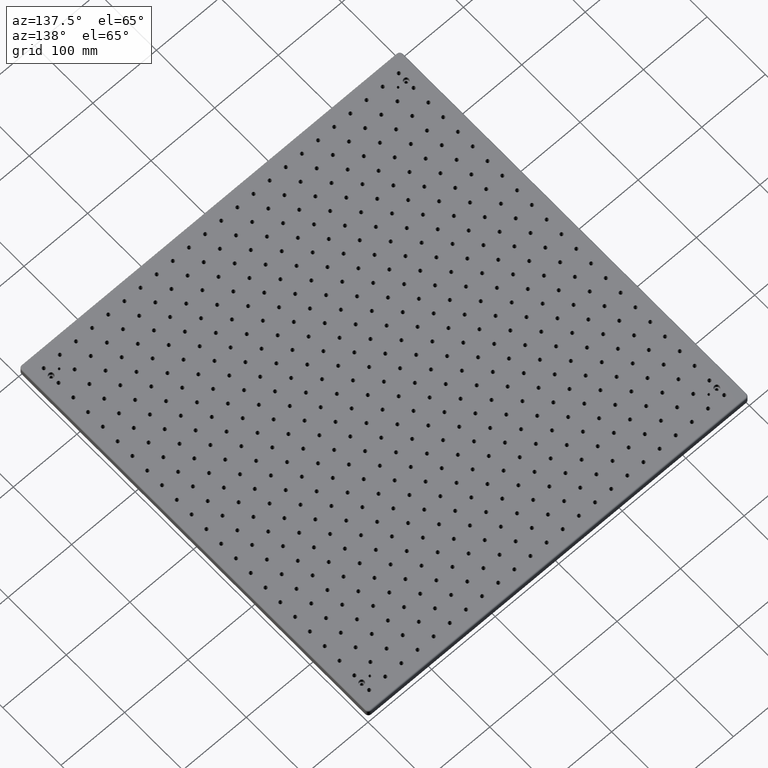
[diagram: clean part render]
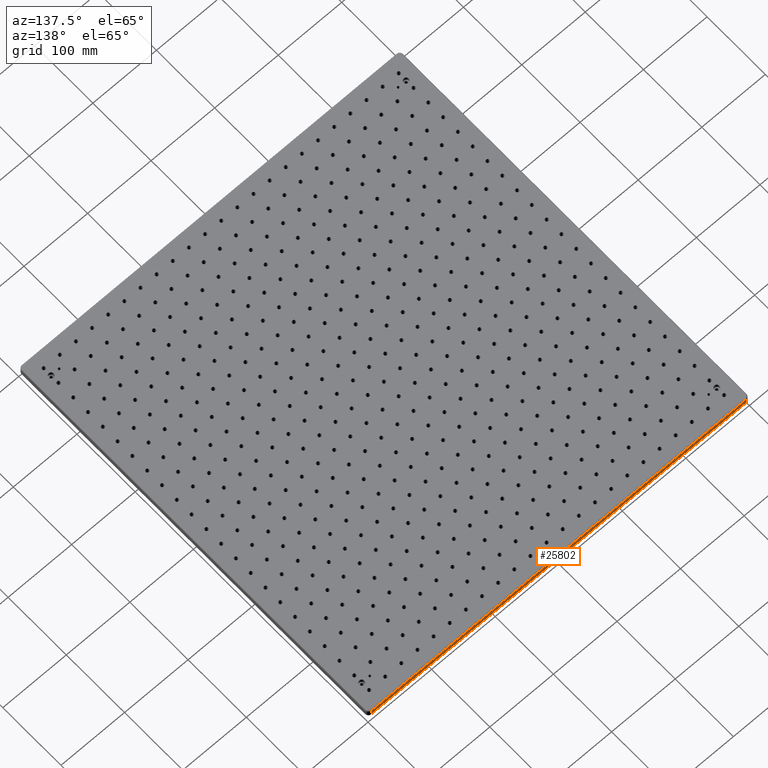
[diagram: same view with one face highlighted and labeled with its STEP entity id]
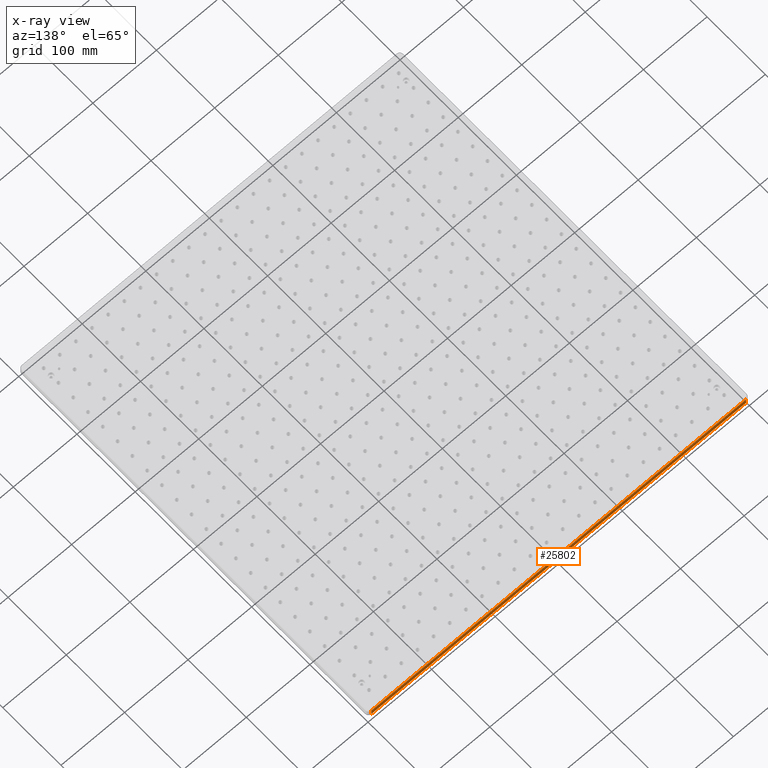
[diagram: x-ray of the same camera — body ghosted, the highlighted face saturated]
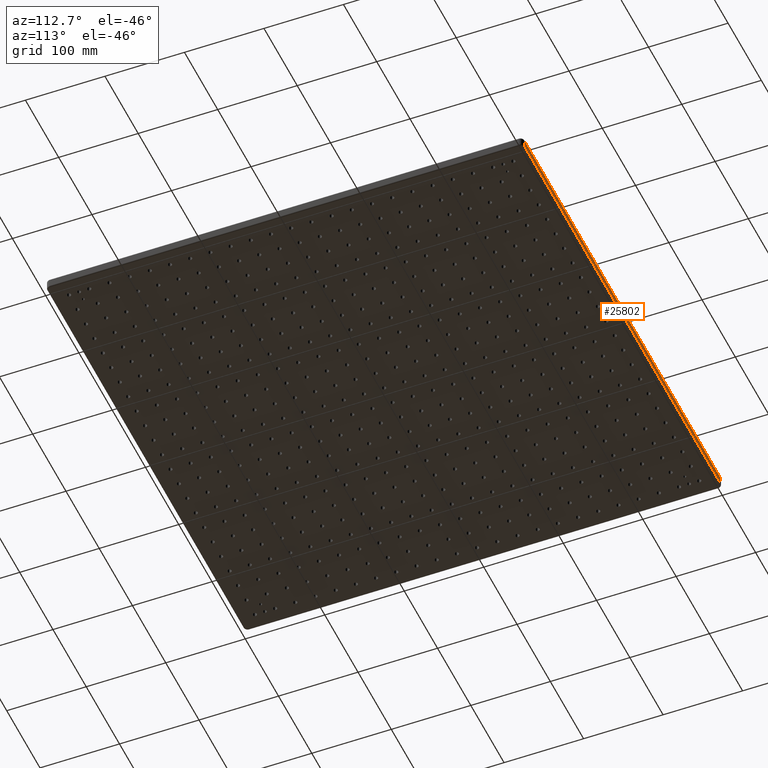
[diagram: same view with one face highlighted and labeled with its STEP entity id]
A machine part, auxiliary view. The second image highlights one B-rep face of the part: STEP entity #25802.
The next image is the same camera in x-ray: the body ghosted, the highlighted face saturated — about 0% of this face is hidden behind the body in this view.
A second angle (auxiliary view) of the same face is appended — the face is thin or edge-on in the first view.
In plain terms, the highlighted planar face has unit normal (-0, 1, 0).
Its self-contained STEP definition (entity closure, byte-faithful):
#2435 = VERTEX_POINT ( 'NONE', #35991 ) ;
#3325 = VERTEX_POINT ( 'NONE', #4812 ) ;
#4308 = CARTESIAN_POINT ( 'NONE',  ( -295.0000000000001700, 300.0000000000000600, -11.00000000000000000 ) ) ;
#4812 = CARTESIAN_POINT ( 'NONE',  ( 295.0000000000001700, 300.0000000000000600, -11.00000000000000000 ) ) ;
#8276 = DIRECTION ( 'NONE',  ( 1.000000000000000000, 9.408669700213185700E-017, -0.0000000000000000000 ) ) ;
#10531 = ORIENTED_EDGE ( 'NONE', *, *, #10819, .F. ) ;
#10819 = EDGE_CURVE ( 'NONE', #3325, #12195, #16605, .T. ) ;
#11124 = VECTOR ( 'NONE', #38133, 1000.000000000000000 ) ;
#11962 = VERTEX_POINT ( 'NONE', #21504 ) ;
#12195 = VERTEX_POINT ( 'NONE', #12836 ) ;
#12365 = EDGE_LOOP ( 'NONE', ( #10531, #25055, #13639, #18813 ) ) ;
#12836 = CARTESIAN_POINT ( 'NONE',  ( 295.0000000000001700, 300.0000000000000600, -2.000000000000003600 ) ) ;
#13639 = ORIENTED_EDGE ( 'NONE', *, *, #26418, .T. ) ;
#15875 = CARTESIAN_POINT ( 'NONE',  ( 295.0000000000001700, 300.0000000000000600, -13.00000000000000000 ) ) ;
#16560 = DIRECTION ( 'NONE',  ( -1.000000000000000000, -9.408669700213185700E-017, 0.0000000000000000000 ) ) ;
#16605 = LINE ( 'NONE', #15875, #29373 ) ;
#18813 = ORIENTED_EDGE ( 'NONE', *, *, #35804, .T. ) ;
#21504 = CARTESIAN_POINT ( 'NONE',  ( -295.0000000000001700, 300.0000000000000600, -11.00000000000000000 ) ) ;
#24034 = FACE_OUTER_BOUND ( 'NONE', #12365, .T. ) ;
#25055 = ORIENTED_EDGE ( 'NONE', *, *, #34022, .T. ) ;
#25802 = ADVANCED_FACE ( 'NONE', ( #24034 ), #31933, .T. ) ;
#25876 = DIRECTION ( 'NONE',  ( -1.000000000000000000, -9.408669700213185700E-017, 0.0000000000000000000 ) ) ;
#26028 = CARTESIAN_POINT ( 'NONE',  ( -295.0000000000001700, 300.0000000000000600, -13.00000000000000000 ) ) ;
#26418 = EDGE_CURVE ( 'NONE', #11962, #2435, #31829, .T. ) ;
#26434 = AXIS2_PLACEMENT_3D ( 'NONE', #32069, #35054, #25876 ) ;
#27346 = LINE ( 'NONE', #30166, #27858 ) ;
#27858 = VECTOR ( 'NONE', #8276, 1000.000000000000000 ) ;
#29373 = VECTOR ( 'NONE', #37876, 1000.000000000000000 ) ;
#30166 = CARTESIAN_POINT ( 'NONE',  ( 295.0000000000001700, 300.0000000000001100, -2.000000000000000000 ) ) ;
#31829 = LINE ( 'NONE', #26028, #11124 ) ;
#31933 = PLANE ( 'NONE',  #26434 ) ;
#32069 = CARTESIAN_POINT ( 'NONE',  ( -295.0000000000001700, 300.0000000000000600, -13.00000000000000000 ) ) ;
#33403 = LINE ( 'NONE', #4308, #33882 ) ;
#33882 = VECTOR ( 'NONE', #16560, 1000.000000000000000 ) ;
#34022 = EDGE_CURVE ( 'NONE', #3325, #11962, #33403, .T. ) ;
#35054 = DIRECTION ( 'NONE',  ( -9.408669700213185700E-017, 1.000000000000000000, 0.0000000000000000000 ) ) ;
#35804 = EDGE_CURVE ( 'NONE', #2435, #12195, #27346, .T. ) ;
#35991 = CARTESIAN_POINT ( 'NONE',  ( -295.0000000000001700, 300.0000000000000600, -2.000000000000003600 ) ) ;
#37876 = DIRECTION ( 'NONE',  ( 0.0000000000000000000, 0.0000000000000000000, 1.000000000000000000 ) ) ;
#38133 = DIRECTION ( 'NONE',  ( 0.0000000000000000000, 0.0000000000000000000, 1.000000000000000000 ) ) ;